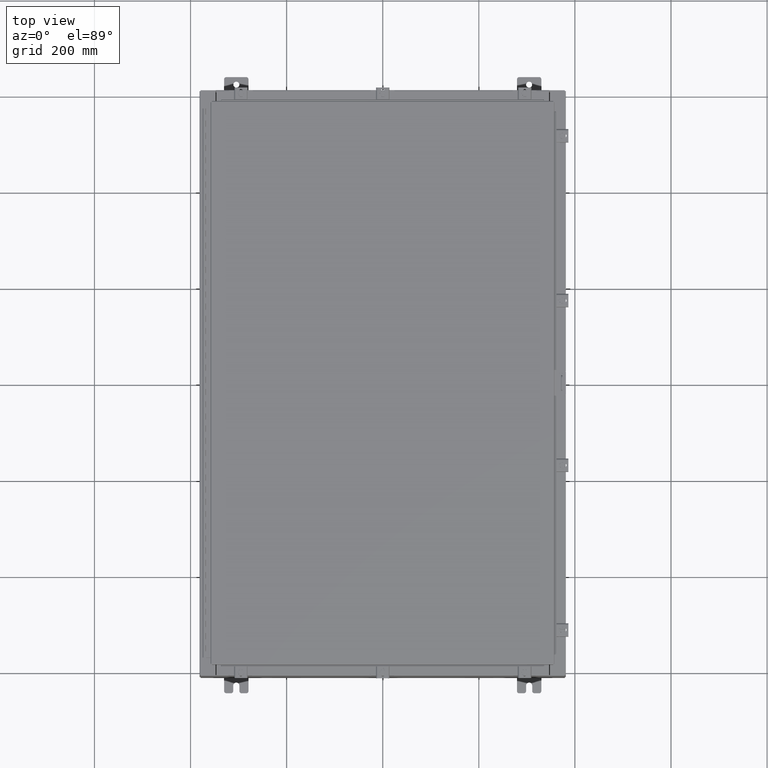
[diagram: clean part render]
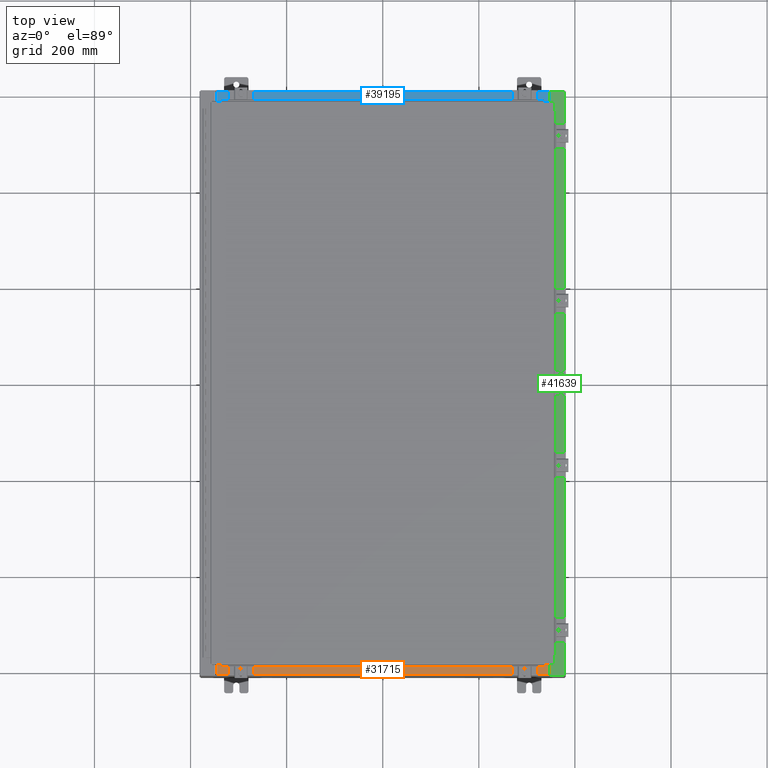
[diagram: same view with three faces highlighted in distinct colors, each labeled with its STEP entity id]
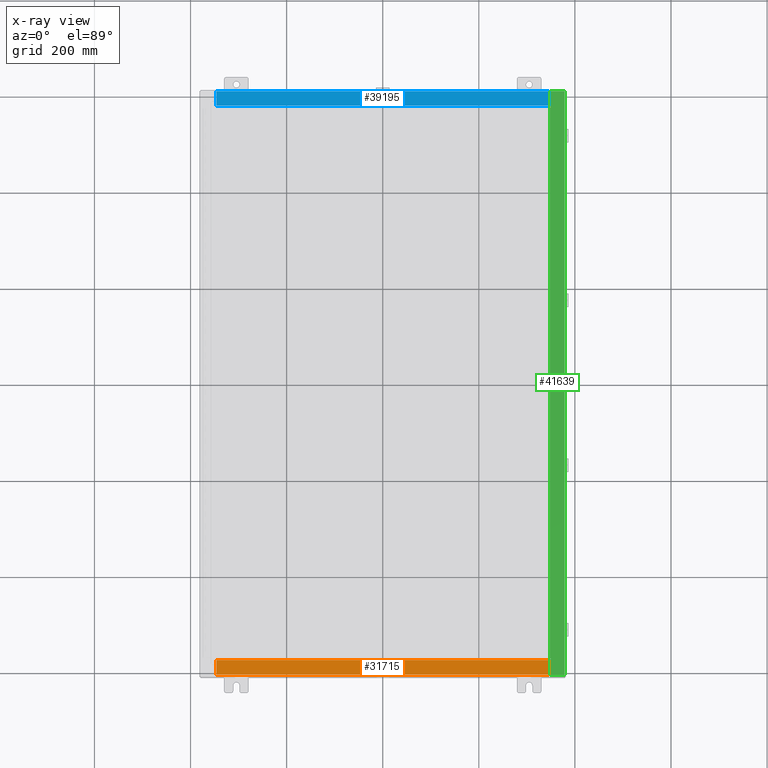
[diagram: x-ray of the same camera — body ghosted, the three highlighted faces saturated]
A machine part, top view with three faces highlighted in distinct colors.
The next image is the same camera in x-ray (body ghosted, the three faces saturated) — at least one of them is partly hidden behind the body in this view.
Their STEP definitions:

[orange] entity #31715 — the highlighted planar face has unit normal (-0, -0, 1).
#130 = VECTOR ( 'NONE', #4507, 39.37007874015748100 ) ;
#1448 = AXIS2_PLACEMENT_3D ( 'NONE', #19631, #27888, #3380 ) ;
#1508 = CARTESIAN_POINT ( 'NONE',  ( 13.63719999999999800, -0.08770000000000047200, 5.000000000000000000 ) ) ;
#3380 = DIRECTION ( 'NONE',  ( 0.0000000000000000000, -1.000000000000000000, 3.566381192773190000E-015 ) ) ;
#4507 = DIRECTION ( 'NONE',  ( -1.000000000000000000, 0.0000000000000000000, 0.0000000000000000000 ) ) ;
#5145 = CARTESIAN_POINT ( 'NONE',  ( -13.63720000000000400, -1.287299999999999200, 5.000000000000004400 ) ) ;
#5482 = DIRECTION ( 'NONE',  ( -1.000000000000000000, -4.006464660875052000E-017, 1.428858021605520200E-031 ) ) ;
#7023 = EDGE_CURVE ( 'NONE', #23275, #22179, #42347, .T. ) ;
#7555 = ORIENTED_EDGE ( 'NONE', *, *, #7023, .F. ) ;
#11808 = VERTEX_POINT ( 'NONE', #41274 ) ;
#12180 = VECTOR ( 'NONE', #40613, 39.37007874015748100 ) ;
#14018 = EDGE_LOOP ( 'NONE', ( #41509, #7555, #50863, #16045 ) ) ;
#16045 = ORIENTED_EDGE ( 'NONE', *, *, #42154, .T. ) ;
#18803 = DIRECTION ( 'NONE',  ( -0.0000000000000000000, -1.000000000000000000, 3.566381192773190000E-015 ) ) ;
#19631 = CARTESIAN_POINT ( 'NONE',  ( 0.0000000000000000000, 1.782631094477737600E-014, 5.000000000000000000 ) ) ;
#21816 = CARTESIAN_POINT ( 'NONE',  ( 3.513669507588167300E-018, -0.08770000000000081900, 5.000000000000000000 ) ) ;
#22179 = VERTEX_POINT ( 'NONE', #5145 ) ;
#22737 = VERTEX_POINT ( 'NONE', #1508 ) ;
#23275 = VERTEX_POINT ( 'NONE', #23595 ) ;
#23595 = CARTESIAN_POINT ( 'NONE',  ( 13.63719999999999800, -1.287299999999999900, 5.000000000000004400 ) ) ;
#23708 = VECTOR ( 'NONE', #18803, 39.37007874015748100 ) ;
#24409 = VECTOR ( 'NONE', #5482, 39.37007874015748100 ) ;
#27888 = DIRECTION ( 'NONE',  ( 0.0000000000000000000, 3.566381192773190000E-015, 1.000000000000000000 ) ) ;
#30994 = CARTESIAN_POINT ( 'NONE',  ( 13.63719999999999800, -1.300299999999999800, 5.000000000000004400 ) ) ;
#31715 = ADVANCED_FACE ( 'NONE', ( #37706 ), #43883, .T. ) ;
#32658 = EDGE_CURVE ( 'NONE', #22179, #11808, #44531, .T. ) ;
#35141 = LINE ( 'NONE', #21816, #24409 ) ;
#36602 = CARTESIAN_POINT ( 'NONE',  ( -13.63720000000000400, -0.07469999999999973900, 5.000000000000000000 ) ) ;
#37706 = FACE_OUTER_BOUND ( 'NONE', #14018, .T. ) ;
#40548 = CARTESIAN_POINT ( 'NONE',  ( 13.63719999999999800, -1.287299999999999900, 5.000000000000002700 ) ) ;
#40613 = DIRECTION ( 'NONE',  ( -0.0000000000000000000, 1.000000000000000000, -3.566381192773190000E-015 ) ) ;
#41274 = CARTESIAN_POINT ( 'NONE',  ( -13.63720000000000400, -0.08770000000000081900, 5.000000000000000000 ) ) ;
#41509 = ORIENTED_EDGE ( 'NONE', *, *, #32658, .F. ) ;
#42154 = EDGE_CURVE ( 'NONE', #22737, #11808, #35141, .T. ) ;
#42347 = LINE ( 'NONE', #40548, #130 ) ;
#42978 = EDGE_CURVE ( 'NONE', #22737, #23275, #45140, .T. ) ;
#43883 = PLANE ( 'NONE',  #1448 ) ;
#44531 = LINE ( 'NONE', #36602, #12180 ) ;
#45140 = LINE ( 'NONE', #30994, #23708 ) ;
#50863 = ORIENTED_EDGE ( 'NONE', *, *, #42978, .F. ) ;

[blue] entity #39195 — the highlighted planar face has unit normal (0, 0, 1).
#653 = LINE ( 'NONE', #14151, #31967 ) ;
#5817 = CARTESIAN_POINT ( 'NONE',  ( 13.63719999999999800, -1.287299999999999900, 5.000000000000002700 ) ) ;
#6839 = LINE ( 'NONE', #15051, #48739 ) ;
#9949 = DIRECTION ( 'NONE',  ( -1.000000000000000000, 0.0000000000000000000, 0.0000000000000000000 ) ) ;
#12423 = ORIENTED_EDGE ( 'NONE', *, *, #32897, .F. ) ;
#12795 = VECTOR ( 'NONE', #13508, 39.37007874015748100 ) ;
#13331 = DIRECTION ( 'NONE',  ( 0.0000000000000000000, 3.566381192773190000E-015, 1.000000000000000000 ) ) ;
#13508 = DIRECTION ( 'NONE',  ( -0.0000000000000000000, 1.000000000000000000, -3.566381192773190000E-015 ) ) ;
#14151 = CARTESIAN_POINT ( 'NONE',  ( 3.513669507588167300E-018, -0.08770000000000081900, 5.000000000000000000 ) ) ;
#15051 = CARTESIAN_POINT ( 'NONE',  ( 13.63719999999999800, -1.300299999999999800, 5.000000000000004400 ) ) ;
#17593 = CARTESIAN_POINT ( 'NONE',  ( -13.63720000000000400, -0.07469999999999973900, 5.000000000000000000 ) ) ;
#18018 = LINE ( 'NONE', #5817, #49046 ) ;
#23663 = CARTESIAN_POINT ( 'NONE',  ( 13.63719999999999800, -0.08770000000000047200, 5.000000000000000000 ) ) ;
#23696 = EDGE_CURVE ( 'NONE', #33973, #45578, #653, .T. ) ;
#24593 = VERTEX_POINT ( 'NONE', #27505 ) ;
#27240 = DIRECTION ( 'NONE',  ( -0.0000000000000000000, -1.000000000000000000, 3.566381192773190000E-015 ) ) ;
#27505 = CARTESIAN_POINT ( 'NONE',  ( 13.63719999999999800, -1.287299999999999900, 5.000000000000004400 ) ) ;
#27605 = AXIS2_PLACEMENT_3D ( 'NONE', #37647, #13331, #41661 ) ;
#27634 = ORIENTED_EDGE ( 'NONE', *, *, #23696, .T. ) ;
#28554 = CARTESIAN_POINT ( 'NONE',  ( -13.63720000000000400, -1.287299999999999200, 5.000000000000004400 ) ) ;
#31029 = CARTESIAN_POINT ( 'NONE',  ( -13.63720000000000400, -0.08770000000000081900, 5.000000000000000000 ) ) ;
#31967 = VECTOR ( 'NONE', #34647, 39.37007874015748100 ) ;
#32897 = EDGE_CURVE ( 'NONE', #35615, #45578, #45167, .T. ) ;
#33582 = ORIENTED_EDGE ( 'NONE', *, *, #34871, .F. ) ;
#33610 = PLANE ( 'NONE',  #27605 ) ;
#33973 = VERTEX_POINT ( 'NONE', #23663 ) ;
#34647 = DIRECTION ( 'NONE',  ( -1.000000000000000000, -4.006464660875052000E-017, 1.428858021605520200E-031 ) ) ;
#34871 = EDGE_CURVE ( 'NONE', #24593, #35615, #18018, .T. ) ;
#35615 = VERTEX_POINT ( 'NONE', #28554 ) ;
#37647 = CARTESIAN_POINT ( 'NONE',  ( 0.0000000000000000000, 1.782631094477737600E-014, 5.000000000000000000 ) ) ;
#39195 = ADVANCED_FACE ( 'NONE', ( #45117 ), #33610, .T. ) ;
#41661 = DIRECTION ( 'NONE',  ( 0.0000000000000000000, -1.000000000000000000, 3.566381192773190000E-015 ) ) ;
#44583 = EDGE_LOOP ( 'NONE', ( #12423, #33582, #49112, #27634 ) ) ;
#45117 = FACE_OUTER_BOUND ( 'NONE', #44583, .T. ) ;
#45167 = LINE ( 'NONE', #17593, #12795 ) ;
#45578 = VERTEX_POINT ( 'NONE', #31029 ) ;
#48739 = VECTOR ( 'NONE', #27240, 39.37007874015748100 ) ;
#49046 = VECTOR ( 'NONE', #9949, 39.37007874015748100 ) ;
#49112 = ORIENTED_EDGE ( 'NONE', *, *, #52219, .F. ) ;
#52219 = EDGE_CURVE ( 'NONE', #33973, #24593, #6839, .T. ) ;

[green] entity #41639 — the highlighted planar face has unit normal (-0, 0, -1).
#192 = CARTESIAN_POINT ( 'NONE',  ( 5.335691853495967900E-014, 23.92529999999998900, 9.925300000000083500 ) ) ;
#231 = CARTESIAN_POINT ( 'NONE',  ( 13.75005000000003500, 22.61242499999997700, 9.925300000000008900 ) ) ;
#404 = ORIENTED_EDGE ( 'NONE', *, *, #45521, .F. ) ;
#777 = VERTEX_POINT ( 'NONE', #3318 ) ;
#1974 = AXIS2_PLACEMENT_3D ( 'NONE', #27029, #31100, #6598 ) ;
#2687 = DIRECTION ( 'NONE',  ( 1.000000000000000000, 0.0000000000000000000, 0.0000000000000000000 ) ) ;
#3318 = CARTESIAN_POINT ( 'NONE',  ( 13.69970000000003400, 23.92529999999998900, 9.925300000000008900 ) ) ;
#3647 = DIRECTION ( 'NONE',  ( -1.000000000000000000, 0.0000000000000000000, 0.0000000000000000000 ) ) ;
#4268 = VECTOR ( 'NONE', #3647, 39.37007874015748100 ) ;
#4580 = AXIS2_PLACEMENT_3D ( 'NONE', #231, #19543, #2687 ) ;
#4849 = CARTESIAN_POINT ( 'NONE',  ( 13.75005000000003500, 22.63109999999997900, 9.925300000000008900 ) ) ;
#4910 = CARTESIAN_POINT ( 'NONE',  ( 13.71270000000003700, -22.59374999999997900, 9.925300000000008900 ) ) ;
#5064 = VECTOR ( 'NONE', #11312, 39.37007874015748100 ) ;
#5590 = DIRECTION ( 'NONE',  ( 1.000000000000000000, -3.566381192773192400E-015, -5.349571789159789300E-015 ) ) ;
#5739 = LINE ( 'NONE', #32398, #36937 ) ;
#6170 = DIRECTION ( 'NONE',  ( -1.000000000000000000, 0.0000000000000000000, 0.0000000000000000000 ) ) ;
#6598 = DIRECTION ( 'NONE',  ( -1.000000000000000000, 0.0000000000000000000, 5.349571789159788500E-015 ) ) ;
#7088 = VERTEX_POINT ( 'NONE', #28432 ) ;
#7363 = VECTOR ( 'NONE', #6170, 39.37007874015748100 ) ;
#7725 = CARTESIAN_POINT ( 'NONE',  ( 14.91230000000003400, 23.92529999999998600, 9.925300000000001800 ) ) ;
#8789 = VERTEX_POINT ( 'NONE', #46977 ) ;
#10421 = CARTESIAN_POINT ( 'NONE',  ( 13.75005000000003500, -22.61242499999997700, 9.925300000000008900 ) ) ;
#11149 = CARTESIAN_POINT ( 'NONE',  ( 13.69970000000003400, -4.389053564852444200E-030, 9.925300000000008900 ) ) ;
#11312 = DIRECTION ( 'NONE',  ( -3.203758888773075000E-031, -1.000000000000000000, 1.713873817065035400E-045 ) ) ;
#11337 = CARTESIAN_POINT ( 'NONE',  ( 13.71270000000003700, 22.59374999999997900, 9.925300000000008900 ) ) ;
#11753 = DIRECTION ( 'NONE',  ( 1.000000000000000000, 0.0000000000000000000, 0.0000000000000000000 ) ) ;
#12551 = DIRECTION ( 'NONE',  ( -1.000000000000000000, 0.0000000000000000000, 5.349571789159789300E-015 ) ) ;
#12832 = EDGE_CURVE ( 'NONE', #52632, #47843, #37566, .T. ) ;
#12912 = EDGE_LOOP ( 'NONE', ( #49421, #41371, #26949, #32072, #27472, #28105, #404, #37418, #16133, #42275, #48439, #15790 ) ) ;
#13555 = FACE_OUTER_BOUND ( 'NONE', #12912, .T. ) ;
#13603 = CARTESIAN_POINT ( 'NONE',  ( 14.91230000000003400, -23.92529999999998200, 9.925300000000001800 ) ) ;
#15790 = ORIENTED_EDGE ( 'NONE', *, *, #17424, .F. ) ;
#16133 = ORIENTED_EDGE ( 'NONE', *, *, #24062, .F. ) ;
#16709 = EDGE_CURVE ( 'NONE', #8789, #20749, #26068, .T. ) ;
#17085 = EDGE_CURVE ( 'NONE', #7088, #24613, #27299, .T. ) ;
#17305 = CARTESIAN_POINT ( 'NONE',  ( 13.69970000000003400, -23.92529999999998200, 9.925300000000008900 ) ) ;
#17424 = EDGE_CURVE ( 'NONE', #47843, #8789, #22839, .T. ) ;
#17594 = CARTESIAN_POINT ( 'NONE',  ( 13.75005000000003500, -22.59374999999997900, 9.925300000000008900 ) ) ;
#19140 = DIRECTION ( 'NONE',  ( 1.000000000000000000, 0.0000000000000000000, 0.0000000000000000000 ) ) ;
#19356 = VECTOR ( 'NONE', #5590, 39.37007874015748100 ) ;
#19543 = DIRECTION ( 'NONE',  ( 5.349571789159788500E-015, 0.0000000000000000000, 1.000000000000000000 ) ) ;
#20749 = VERTEX_POINT ( 'NONE', #46329 ) ;
#21839 = VECTOR ( 'NONE', #12551, 39.37007874015748100 ) ;
#22701 = CARTESIAN_POINT ( 'NONE',  ( 13.75005000000003500, 22.63109999999997900, 9.925300000000008900 ) ) ;
#22839 = CIRCLE ( 'NONE', #30989, 0.01867499999999949400 ) ;
#23256 = CARTESIAN_POINT ( 'NONE',  ( 14.91230000000003400, -23.92529999999998600, 9.925300000000001800 ) ) ;
#24062 = EDGE_CURVE ( 'NONE', #36085, #7088, #5739, .T. ) ;
#24451 = LINE ( 'NONE', #43846, #43294 ) ;
#24613 = VERTEX_POINT ( 'NONE', #4849 ) ;
#24628 = EDGE_CURVE ( 'NONE', #20749, #36085, #39972, .T. ) ;
#25782 = VECTOR ( 'NONE', #27987, 39.37007874015748100 ) ;
#26068 = LINE ( 'NONE', #17594, #4268 ) ;
#26381 = VECTOR ( 'NONE', #41912, 39.37007874015748100 ) ;
#26949 = ORIENTED_EDGE ( 'NONE', *, *, #47158, .T. ) ;
#27029 = CARTESIAN_POINT ( 'NONE',  ( 5.335691853495967900E-014, 0.0000000000000000000, 9.925300000000083500 ) ) ;
#27299 = CIRCLE ( 'NONE', #4580, 0.01867499999999949400 ) ;
#27472 = ORIENTED_EDGE ( 'NONE', *, *, #49207, .T. ) ;
#27987 = DIRECTION ( 'NONE',  ( 1.000000000000000000, 0.0000000000000000000, 0.0000000000000000000 ) ) ;
#28105 = ORIENTED_EDGE ( 'NONE', *, *, #48128, .T. ) ;
#28432 = CARTESIAN_POINT ( 'NONE',  ( 13.75005000000003500, 22.59374999999997900, 9.925300000000008900 ) ) ;
#29131 = LINE ( 'NONE', #22701, #7363 ) ;
#29347 = VECTOR ( 'NONE', #37129, 39.37007874015748100 ) ;
#30989 = AXIS2_PLACEMENT_3D ( 'NONE', #10421, #31966, #19140 ) ;
#31100 = DIRECTION ( 'NONE',  ( -5.349571789159788500E-015, 0.0000000000000000000, -1.000000000000000000 ) ) ;
#31966 = DIRECTION ( 'NONE',  ( 5.349571789159788500E-015, 0.0000000000000000000, 1.000000000000000000 ) ) ;
#32072 = ORIENTED_EDGE ( 'NONE', *, *, #47830, .F. ) ;
#32398 = CARTESIAN_POINT ( 'NONE',  ( 13.71270000000003700, 22.59374999999997900, 9.925300000000008900 ) ) ;
#33894 = CARTESIAN_POINT ( 'NONE',  ( 13.75005000000003500, -22.63109999999997900, 9.925300000000008900 ) ) ;
#36085 = VERTEX_POINT ( 'NONE', #11337 ) ;
#36937 = VECTOR ( 'NONE', #11753, 39.37007874015748100 ) ;
#37070 = LINE ( 'NONE', #13603, #26381 ) ;
#37129 = DIRECTION ( 'NONE',  ( -0.0000000000000000000, 1.000000000000000000, -0.0000000000000000000 ) ) ;
#37209 = VERTEX_POINT ( 'NONE', #17305 ) ;
#37418 = ORIENTED_EDGE ( 'NONE', *, *, #17085, .F. ) ;
#37566 = LINE ( 'NONE', #41099, #25782 ) ;
#37966 = CARTESIAN_POINT ( 'NONE',  ( -3.196982141649654200E-014, -23.92529999999993300, 9.925300000000083500 ) ) ;
#38251 = CARTESIAN_POINT ( 'NONE',  ( 13.69970000000003400, -22.63109999999997900, 9.925300000000008900 ) ) ;
#38780 = LINE ( 'NONE', #11149, #5064 ) ;
#39457 = VERTEX_POINT ( 'NONE', #41864 ) ;
#39972 = LINE ( 'NONE', #4910, #29347 ) ;
#41087 = VERTEX_POINT ( 'NONE', #7725 ) ;
#41099 = CARTESIAN_POINT ( 'NONE',  ( 13.69970000000003400, -22.63109999999997900, 9.925300000000008900 ) ) ;
#41371 = ORIENTED_EDGE ( 'NONE', *, *, #43068, .T. ) ;
#41639 = ADVANCED_FACE ( 'NONE', ( #13555 ), #51116, .F. ) ;
#41864 = CARTESIAN_POINT ( 'NONE',  ( 13.69970000000003400, 22.63109999999997900, 9.925300000000008900 ) ) ;
#41912 = DIRECTION ( 'NONE',  ( -0.0000000000000000000, -1.000000000000000000, -0.0000000000000000000 ) ) ;
#42142 = LINE ( 'NONE', #37966, #19356 ) ;
#42275 = ORIENTED_EDGE ( 'NONE', *, *, #24628, .F. ) ;
#43068 = EDGE_CURVE ( 'NONE', #52632, #37209, #38780, .T. ) ;
#43240 = LINE ( 'NONE', #192, #21839 ) ;
#43294 = VECTOR ( 'NONE', #51808, 39.37007874015748100 ) ;
#43846 = CARTESIAN_POINT ( 'NONE',  ( 13.69970000000003400, -4.389053564852444200E-030, 9.925300000000008900 ) ) ;
#45521 = EDGE_CURVE ( 'NONE', #24613, #39457, #29131, .T. ) ;
#46329 = CARTESIAN_POINT ( 'NONE',  ( 13.71270000000003700, -22.59374999999997900, 9.925300000000008900 ) ) ;
#46977 = CARTESIAN_POINT ( 'NONE',  ( 13.75005000000003500, -22.59374999999997900, 9.925300000000008900 ) ) ;
#47158 = EDGE_CURVE ( 'NONE', #37209, #51570, #42142, .T. ) ;
#47830 = EDGE_CURVE ( 'NONE', #41087, #51570, #37070, .T. ) ;
#47843 = VERTEX_POINT ( 'NONE', #33894 ) ;
#48128 = EDGE_CURVE ( 'NONE', #777, #39457, #24451, .T. ) ;
#48439 = ORIENTED_EDGE ( 'NONE', *, *, #16709, .F. ) ;
#49207 = EDGE_CURVE ( 'NONE', #41087, #777, #43240, .T. ) ;
#49421 = ORIENTED_EDGE ( 'NONE', *, *, #12832, .F. ) ;
#51116 = PLANE ( 'NONE',  #1974 ) ;
#51570 = VERTEX_POINT ( 'NONE', #23256 ) ;
#51808 = DIRECTION ( 'NONE',  ( -3.203758888773075000E-031, -1.000000000000000000, 1.713873817065035400E-045 ) ) ;
#52632 = VERTEX_POINT ( 'NONE', #38251 ) ;